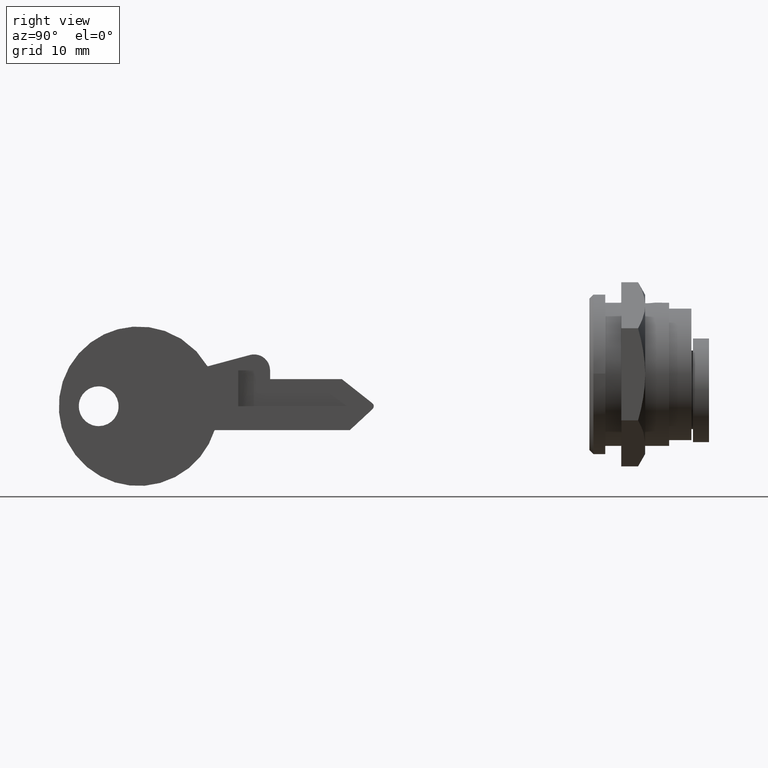
[diagram: clean part render]
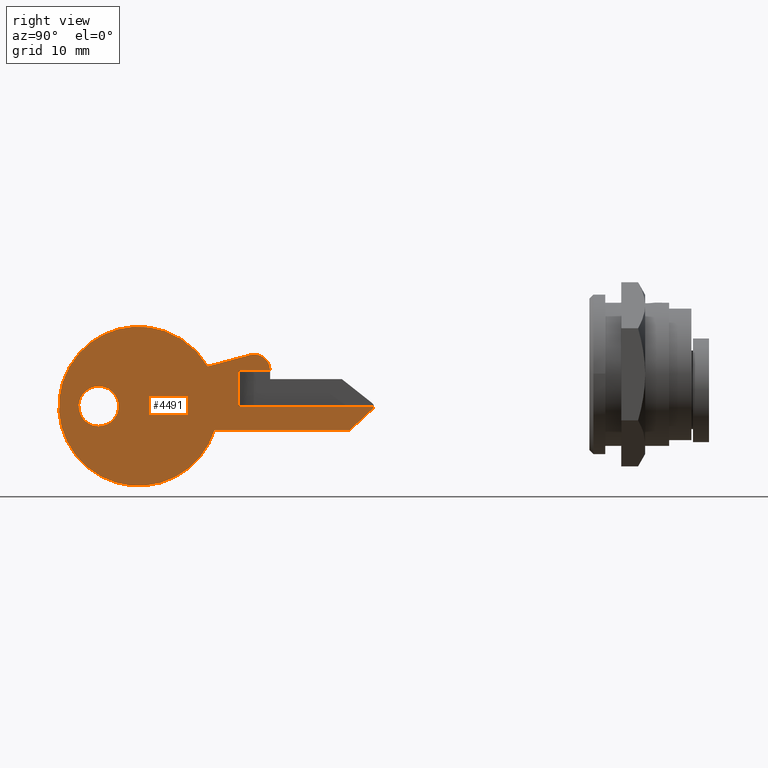
[diagram: same view with one face highlighted and labeled with its STEP entity id]
A machine part, right view. The second image highlights one B-rep face of the part: STEP entity #4491.
In plain terms, the highlighted face is a freeform B-spline surface patch.
Its self-contained STEP definition (entity closure, byte-faithful):
#3745=CARTESIAN_POINT('',(-61.545499999999997,-0.900000000000012,-1.500000000000000));
#3746=VERTEX_POINT('',#3745);
#3747=CARTESIAN_POINT('',(-64.037793334322373,-0.900000000000012,-3.803852260547727));
#3748=VERTEX_POINT('',#3747);
#3749=CARTESIAN_POINT('',(-61.545499999999997,-0.900000000000012,-1.500000000000000));
#3750=CARTESIAN_POINT('',(-63.856476228898757,-0.900000000000012,-1.500000000000001));
#3751=CARTESIAN_POINT('',(-64.037793334322373,-0.900000000000012,-3.803852260547727));
#3759=(BOUNDED_CURVE()B_SPLINE_CURVE(2,(#3749,#3750,#3751),.UNSPECIFIED.,.F.,.U.)B_SPLINE_CURVE_WITH_KNOTS((3,3),(0.0,0.236331300614518),.UNSPECIFIED.)CURVE()GEOMETRIC_REPRESENTATION_ITEM()RATIONAL_B_SPLINE_CURVE((1.0,0.723120658626577,0.969723356133731))REPRESENTATION_ITEM(''));
#3760=EDGE_CURVE('',#3746,#3748,#3759,.T.);
#3801=CARTESIAN_POINT('',(-59.053206665677621,-0.900000000000012,-4.196147739452274));
#3802=VERTEX_POINT('',#3801);
#3808=CARTESIAN_POINT('',(-59.053206665677628,-0.900000000000012,-4.196147739452274));
#3809=CARTESIAN_POINT('',(-59.045499999999997,-0.900000000000012,-4.098225267652450));
#3810=CARTESIAN_POINT('',(-59.045499999999997,-0.900000000000012,-4.0));
#3811=CARTESIAN_POINT('',(-59.045500000000004,-0.900000000000012,-1.500000000000000));
#3812=CARTESIAN_POINT('',(-61.545499999999997,-0.900000000000012,-1.500000000000000));
#3820=(BOUNDED_CURVE()B_SPLINE_CURVE(2,(#3808,#3809,#3810,#3811,#3812),.UNSPECIFIED.,.F.,.U.)B_SPLINE_CURVE_WITH_KNOTS((3,2,3),(0.736331300614518,0.750000000000000,1.0),.UNSPECIFIED.)CURVE()GEOMETRIC_REPRESENTATION_ITEM()RATIONAL_B_SPLINE_CURVE((0.969723356133731,0.983986122559971,1.0,0.707106781186548,1.0))REPRESENTATION_ITEM(''));
#3821=EDGE_CURVE('',#3802,#3746,#3820,.T.);
#3844=CARTESIAN_POINT('',(-61.545499999999997,-0.900000000000012,-6.500000000000001));
#3845=VERTEX_POINT('',#3844);
#3846=CARTESIAN_POINT('',(-64.037793334322373,-0.900000000000012,-3.803852260547727));
#3847=CARTESIAN_POINT('',(-64.045500000000004,-0.900000000000012,-3.901774732347550));
#3848=CARTESIAN_POINT('',(-64.045500000000004,-0.900000000000012,-4.0));
#3849=CARTESIAN_POINT('',(-64.045500000000004,-0.900000000000012,-6.500000000000003));
#3850=CARTESIAN_POINT('',(-61.545499999999997,-0.900000000000012,-6.500000000000001));
#3858=(BOUNDED_CURVE()B_SPLINE_CURVE(2,(#3846,#3847,#3848,#3849,#3850),.UNSPECIFIED.,.F.,.U.)B_SPLINE_CURVE_WITH_KNOTS((3,2,3),(0.236331300614518,0.250000000000000,0.500000000000000),.UNSPECIFIED.)CURVE()GEOMETRIC_REPRESENTATION_ITEM()RATIONAL_B_SPLINE_CURVE((0.969723356133731,0.983986122559971,1.0,0.707106781186548,1.0))REPRESENTATION_ITEM(''));
#3859=EDGE_CURVE('',#3748,#3845,#3858,.T.);
#3861=CARTESIAN_POINT('',(-61.545499999999997,-0.900000000000012,-6.500000000000001));
#3862=CARTESIAN_POINT('',(-59.234523771101273,-0.900000000000012,-6.500000000000002));
#3863=CARTESIAN_POINT('',(-59.053206665677621,-0.900000000000012,-4.196147739452274));
#3871=(BOUNDED_CURVE()B_SPLINE_CURVE(2,(#3861,#3862,#3863),.UNSPECIFIED.,.F.,.U.)B_SPLINE_CURVE_WITH_KNOTS((3,3),(0.500000000000000,0.736331300614518),.UNSPECIFIED.)CURVE()GEOMETRIC_REPRESENTATION_ITEM()RATIONAL_B_SPLINE_CURVE((1.0,0.723120658626576,0.969723356133732))REPRESENTATION_ITEM(''));
#3872=EDGE_CURVE('',#3845,#3802,#3871,.T.);
#3984=CARTESIAN_POINT('',(-44.045499999999997,-0.900000000000012,0.500000000000000));
#3985=VERTEX_POINT('',#3984);
#4001=CARTESIAN_POINT('',(-44.045499999999997,-0.900000000000000,-4.0));
#4002=VERTEX_POINT('',#4001);
#4003=CARTESIAN_POINT('',(-44.045499999999997,-0.900000000000012,0.500000000000000));
#4004=CARTESIAN_POINT('',(-44.045499999999997,-0.900000000000000,-4.0));
#4005=QUASI_UNIFORM_CURVE('',1,(#4003,#4004),.UNSPECIFIED.,.F.,.U.);
#4006=EDGE_CURVE('',#3985,#4002,#4005,.T.);
#4137=CARTESIAN_POINT('',(-40.045499999999997,-0.900000000000012,0.500000000000000));
#4138=VERTEX_POINT('',#4137);
#4139=CARTESIAN_POINT('',(-40.045499999999997,-0.900000000000012,0.500000000000000));
#4140=CARTESIAN_POINT('',(-44.045499999999997,-0.900000000000012,0.500000000000000));
#4141=QUASI_UNIFORM_CURVE('',1,(#4139,#4140),.UNSPECIFIED.,.F.,.U.);
#4142=EDGE_CURVE('',#4138,#3985,#4141,.T.);
#4173=CARTESIAN_POINT('',(-27.045500000000001,-0.900000000000012,-4.0));
#4174=VERTEX_POINT('',#4173);
#4175=CARTESIAN_POINT('',(-44.045499999999997,-0.900000000000000,-4.0));
#4176=CARTESIAN_POINT('',(-27.045500000000001,-0.900000000000012,-4.0));
#4177=QUASI_UNIFORM_CURVE('',1,(#4175,#4176),.UNSPECIFIED.,.F.,.U.);
#4178=EDGE_CURVE('',#4002,#4174,#4177,.T.);
#4264=CARTESIAN_POINT('',(-42.565100000000001,-0.900000000000012,2.431999999999905));
#4265=VERTEX_POINT('',#4264);
#4271=CARTESIAN_POINT('',(-40.045499999999997,-0.900000000000012,0.500000000000000));
#4272=CARTESIAN_POINT('',(-40.045052021240664,-0.900000000000012,1.487188744467515));
#4273=CARTESIAN_POINT('',(-40.828445327394377,-0.900000000000012,2.087885627896954));
#4274=CARTESIAN_POINT('',(-41.611838633548125,-0.900000000000012,2.688582511326392));
#4275=CARTESIAN_POINT('',(-42.565099999999987,-0.900000000000012,2.431999999999874));
#4283=(BOUNDED_CURVE()B_SPLINE_CURVE(2,(#4271,#4272,#4273,#4274,#4275),.UNSPECIFIED.,.F.,.U.)B_SPLINE_CURVE_WITH_KNOTS((3,2,3),(0.0,0.500000000000000,1.0),.UNSPECIFIED.)CURVE()GEOMETRIC_REPRESENTATION_ITEM()RATIONAL_B_SPLINE_CURVE((1.0,0.896697328774785,1.0,0.896697328774785,1.0))REPRESENTATION_ITEM(''));
#4284=EDGE_CURVE('',#4138,#4265,#4283,.T.);
#4310=CARTESIAN_POINT('',(-27.205534424963101,-0.900000000000012,-4.366637979197325));
#4311=VERTEX_POINT('',#4310);
#4317=CARTESIAN_POINT('',(-30.045500000000001,-0.900000000000012,-7.0));
#4318=VERTEX_POINT('',#4317);
#4319=CARTESIAN_POINT('',(-30.045500000000001,-0.900000000000012,-7.0));
#4320=CARTESIAN_POINT('',(-27.205534424963101,-0.900000000000012,-4.366637979197325));
#4321=QUASI_UNIFORM_CURVE('',1,(#4319,#4320),.UNSPECIFIED.,.F.,.U.);
#4322=EDGE_CURVE('',#4318,#4311,#4321,.T.);
#4345=CARTESIAN_POINT('',(-47.006107985830397,-0.900000000000012,-7.0));
#4346=VERTEX_POINT('',#4345);
#4347=CARTESIAN_POINT('',(-47.006107985830397,-0.900000000000012,-7.0));
#4348=CARTESIAN_POINT('',(-30.045500000000001,-0.900000000000012,-7.0));
#4349=QUASI_UNIFORM_CURVE('',1,(#4347,#4348),.UNSPECIFIED.,.F.,.U.);
#4350=EDGE_CURVE('',#4346,#4318,#4349,.T.);
#4408=CARTESIAN_POINT('',(-47.885253230244800,-0.900000000000012,1.000012588678852));
#4409=VERTEX_POINT('',#4408);
#4410=CARTESIAN_POINT('',(-47.885253230244892,-0.900000000000012,1.000012588678790));
#4411=CARTESIAN_POINT('',(-51.943987973449488,-0.900000000000012,8.029923779046071));
#4412=CARTESIAN_POINT('',(-59.658179835192833,-0.900000000000012,5.503221782300146));
#4413=CARTESIAN_POINT('',(-67.372371696936185,-0.900000000000012,2.976519785554221));
#4414=CARTESIAN_POINT('',(-66.485659119505456,-0.900000000000012,-5.092353733418140));
#4415=CARTESIAN_POINT('',(-65.598946542074728,-0.900000000000012,-13.161227252390496));
#4416=CARTESIAN_POINT('',(-57.520144621275243,-0.900000000000012,-13.952390057781059));
#4417=CARTESIAN_POINT('',(-49.441342700475730,-0.900000000000012,-14.743552863171628));
#4418=CARTESIAN_POINT('',(-47.006107985830532,-0.900000000000012,-6.999999999999972));
#4426=(BOUNDED_CURVE()B_SPLINE_CURVE(2,(#4410,#4411,#4412,#4413,#4414,#4415,#4416,#4417,#4418),.UNSPECIFIED.,.F.,.U.)B_SPLINE_CURVE_WITH_KNOTS((3,2,2,2,3),(0.0,0.250000000000000,0.500000000000000,0.750000000000000,1.0),.UNSPECIFIED.)CURVE()GEOMETRIC_REPRESENTATION_ITEM()RATIONAL_B_SPLINE_CURVE((1.0,0.776400840598774,1.0,0.776400840598774,1.0,0.776400840598774,1.0,0.776400840598774,1.0))REPRESENTATION_ITEM(''));
#4427=EDGE_CURVE('',#4409,#4346,#4426,.T.);
#4448=CARTESIAN_POINT('',(-42.565100000000001,-0.900000000000012,2.431999999999905));
#4449=CARTESIAN_POINT('',(-47.885253230244800,-0.900000000000012,1.000012588678852));
#4450=QUASI_UNIFORM_CURVE('',1,(#4448,#4449),.UNSPECIFIED.,.F.,.U.);
#4451=EDGE_CURVE('',#4265,#4409,#4450,.T.);
#4457=CARTESIAN_POINT('',(-68.491042829813424,-0.900000000000000,6.988925547153695));
#4458=CARTESIAN_POINT('',(-25.073781443293029,-0.900000000000000,6.988925547153695));
#4459=CARTESIAN_POINT('',(-68.491042829813424,-0.900000000000000,-14.998284807608330));
#4460=CARTESIAN_POINT('',(-25.073781443293029,-0.900000000000000,-14.998284807608330));
#4461=B_SPLINE_SURFACE_WITH_KNOTS('',1,1,((#4457,#4459),(#4458,#4460)),.UNSPECIFIED.,.F.,.F.,.U.,(2,2),(2,2),(0.0,43.417261386520387),(0.0,21.987210354762020),.UNSPECIFIED.);
#4462=ORIENTED_EDGE('',*,*,#4006,.F.);
#4463=ORIENTED_EDGE('',*,*,#4142,.F.);
#4464=ORIENTED_EDGE('',*,*,#4284,.T.);
#4465=ORIENTED_EDGE('',*,*,#4451,.T.);
#4466=ORIENTED_EDGE('',*,*,#4427,.T.);
#4467=ORIENTED_EDGE('',*,*,#4350,.T.);
#4468=ORIENTED_EDGE('',*,*,#4322,.T.);
#4469=CARTESIAN_POINT('',(-27.205534424963151,-0.900000000000012,-4.366637979197275));
#4470=CARTESIAN_POINT('',(-27.045499999999997,-0.900000000000012,-4.218245836551808));
#4471=CARTESIAN_POINT('',(-27.045500000000001,-0.900000000000012,-4.0));
#4479=(BOUNDED_CURVE()B_SPLINE_CURVE(2,(#4469,#4470,#4471),.UNSPECIFIED.,.F.,.U.)CURVE()GEOMETRIC_REPRESENTATION_ITEM()QUASI_UNIFORM_CURVE()RATIONAL_B_SPLINE_CURVE((1.0,0.916496358441677,1.0))REPRESENTATION_ITEM(''));
#4480=EDGE_CURVE('',#4311,#4174,#4479,.T.);
#4481=ORIENTED_EDGE('',*,*,#4480,.T.);
#4482=ORIENTED_EDGE('',*,*,#4178,.F.);
#4483=EDGE_LOOP('',(#4462,#4463,#4464,#4465,#4466,#4467,#4468,#4481,#4482));
#4484=FACE_OUTER_BOUND('',#4483,.T.);
#4485=ORIENTED_EDGE('',*,*,#3872,.F.);
#4486=ORIENTED_EDGE('',*,*,#3859,.F.);
#4487=ORIENTED_EDGE('',*,*,#3760,.F.);
#4488=ORIENTED_EDGE('',*,*,#3821,.F.);
#4489=EDGE_LOOP('',(#4485,#4486,#4487,#4488));
#4490=FACE_BOUND('',#4489,.T.);
#4491=ADVANCED_FACE('',(#4484,#4490),#4461,.F.);